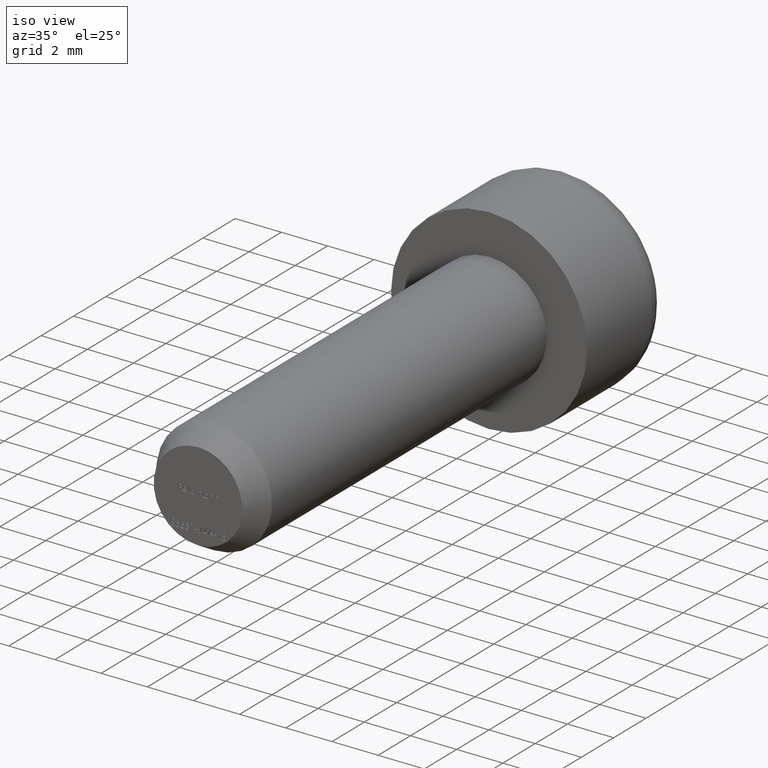
[diagram: clean part render]
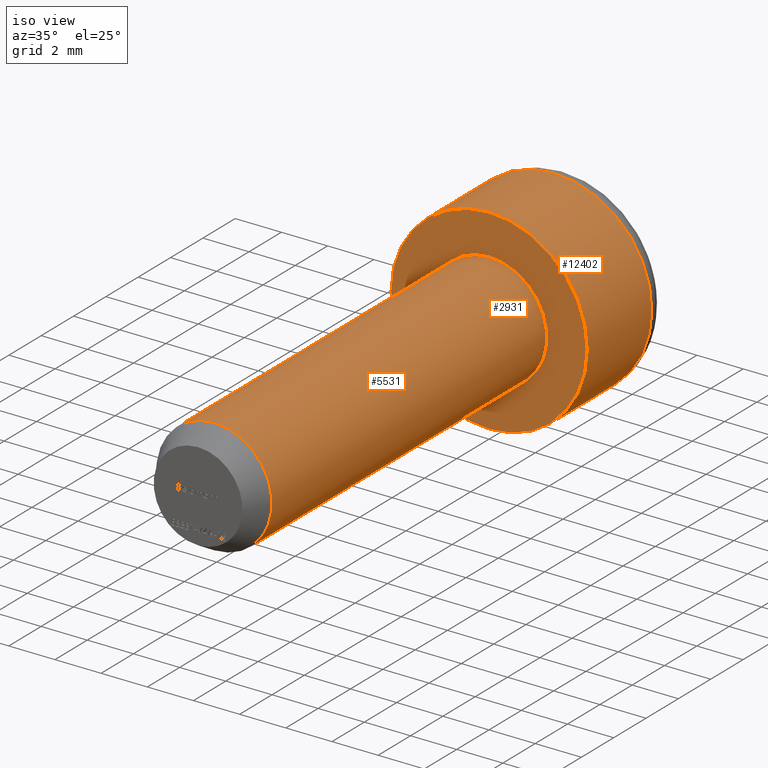
[diagram: same view with one multi-face feature highlighted, each face labeled with its STEP entity id]
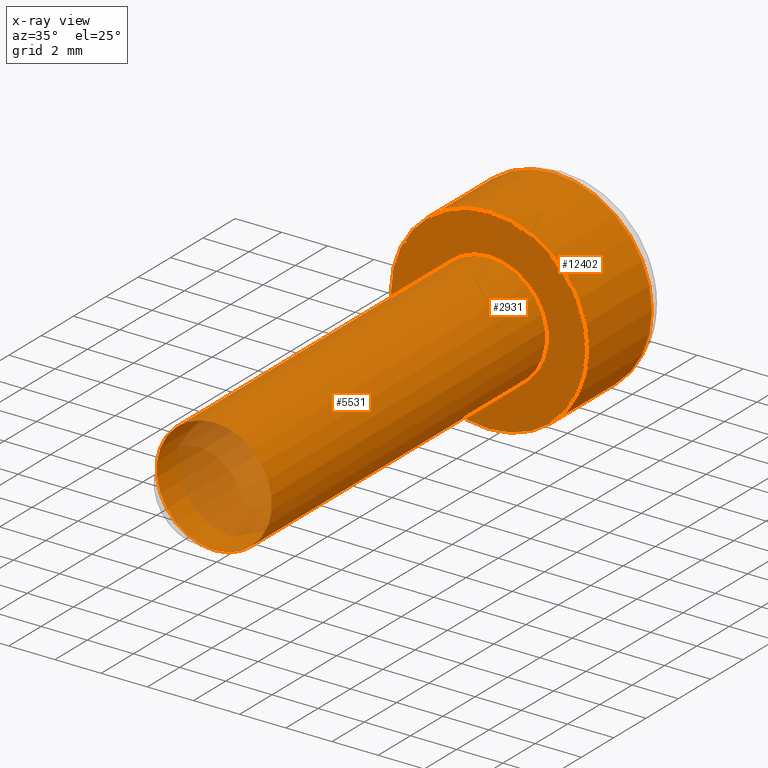
[diagram: x-ray of the same camera — body ghosted, the whole feature saturated]
A machine part, iso view. The highlighted faces form ONE feature: a stepped (counterbored) hole: 2 coaxial cylindrical walls of radii 2.5 -> 4.25 mm joined by 1 annular planar shoulder face(s). The faces share edges in the B-rep.
The next image is the same camera in x-ray: the body ghosted and the whole hole feature saturated, so the bore chain is visible through the body.
Their STEP definitions:
[1] entity #12402 (Cylinder):
#1257 = AXIS2_PLACEMENT_3D ( 'NONE', #10113, #10273, #2151 ) ;
#1612 = EDGE_CURVE ( 'NONE', #1984, #1984, #7484, .T. ) ;
#1984 = VERTEX_POINT ( 'NONE', #4457 ) ;
#2125 = ORIENTED_EDGE ( 'NONE', *, *, #1612, .T. ) ;
#2151 = DIRECTION ( 'NONE',  ( 0.0000000000000000000, 0.0000000000000000000, 1.000000000000000000 ) ) ;
#4333 = CARTESIAN_POINT ( 'NONE',  ( 0.0000000000000000000, 0.0000000000000000000, 0.0000000000000000000 ) ) ;
#4457 = CARTESIAN_POINT ( 'NONE',  ( 0.0000000000000000000, 0.0000000000000000000, 4.250000000000000000 ) ) ;
#4723 = AXIS2_PLACEMENT_3D ( 'NONE', #4333, #12393, #13572 ) ;
#5536 = CYLINDRICAL_SURFACE ( 'NONE', #10144, 4.250000000000000000 ) ;
#5719 = FACE_OUTER_BOUND ( 'NONE', #11517, .T. ) ;
#6187 = DIRECTION ( 'NONE',  ( -0.0000000000000000000, -1.000000000000000000, -0.0000000000000000000 ) ) ;
#6792 = ORIENTED_EDGE ( 'NONE', *, *, #10450, .T. ) ;
#7484 = CIRCLE ( 'NONE', #4723, 4.250000000000000000 ) ;
#8464 = CARTESIAN_POINT ( 'NONE',  ( 0.0000000000000000000, 5.000000000000000000, 0.0000000000000000000 ) ) ;
#10113 = CARTESIAN_POINT ( 'NONE',  ( 0.0000000000000000000, 4.000000000000000000, 0.0000000000000000000 ) ) ;
#10144 = AXIS2_PLACEMENT_3D ( 'NONE', #8464, #6187, #14471 ) ;
#10273 = DIRECTION ( 'NONE',  ( -0.0000000000000000000, -1.000000000000000000, -0.0000000000000000000 ) ) ;
#10450 = EDGE_CURVE ( 'NONE', #13031, #13031, #13693, .T. ) ;
#10586 = FACE_OUTER_BOUND ( 'NONE', #12364, .T. ) ;
#11516 = CARTESIAN_POINT ( 'NONE',  ( 0.0000000000000000000, 4.000000000000000000, 4.250000000000000000 ) ) ;
#11517 = EDGE_LOOP ( 'NONE', ( #6792 ) ) ;
#12364 = EDGE_LOOP ( 'NONE', ( #2125 ) ) ;
#12393 = DIRECTION ( 'NONE',  ( 0.0000000000000000000, 1.000000000000000000, 0.0000000000000000000 ) ) ;
#12402 = ADVANCED_FACE ( 'NONE', ( #5719, #10586 ), #5536, .T. ) ;
#13031 = VERTEX_POINT ( 'NONE', #11516 ) ;
#13572 = DIRECTION ( 'NONE',  ( 0.0000000000000000000, 0.0000000000000000000, 1.000000000000000000 ) ) ;
#13693 = CIRCLE ( 'NONE', #1257, 4.250000000000000000 ) ;
#14471 = DIRECTION ( 'NONE',  ( 0.0000000000000000000, 0.0000000000000000000, -1.000000000000000000 ) ) ;
[2] entity #5531 (Cylinder):
#40 = DIRECTION ( 'NONE',  ( 0.0000000000000000000, 0.0000000000000000000, -1.000000000000000000 ) ) ;
#1482 = VERTEX_POINT ( 'NONE', #13955 ) ;
#2018 = CARTESIAN_POINT ( 'NONE',  ( 0.0000000000000000000, -16.99999999999999300, -2.500000000000000000 ) ) ;
#2320 = CARTESIAN_POINT ( 'NONE',  ( 0.0000000000000000000, -18.00000000000000000, 0.0000000000000000000 ) ) ;
#2378 = FACE_OUTER_BOUND ( 'NONE', #3850, .T. ) ;
#3439 = DIRECTION ( 'NONE',  ( 0.0000000000000000000, 0.0000000000000000000, 1.000000000000000000 ) ) ;
#3850 = EDGE_LOOP ( 'NONE', ( #7143 ) ) ;
#4481 = CARTESIAN_POINT ( 'NONE',  ( 0.0000000000000000000, -16.99999999999999300, 0.0000000000000000000 ) ) ;
#5307 = AXIS2_PLACEMENT_3D ( 'NONE', #4481, #6947, #40 ) ;
#5531 = ADVANCED_FACE ( 'NONE', ( #2378, #6524 ), #5616, .T. ) ;
#5616 = CYLINDRICAL_SURFACE ( 'NONE', #11183, 2.500000000000000000 ) ;
#6431 = CARTESIAN_POINT ( 'NONE',  ( 0.0000000000000000000, 0.0000000000000000000, 0.0000000000000000000 ) ) ;
#6502 = EDGE_CURVE ( 'NONE', #7750, #7750, #14287, .T. ) ;
#6524 = FACE_OUTER_BOUND ( 'NONE', #12351, .T. ) ;
#6571 = AXIS2_PLACEMENT_3D ( 'NONE', #6431, #8760, #7542 ) ;
#6947 = DIRECTION ( 'NONE',  ( 0.0000000000000000000, 1.000000000000000000, 0.0000000000000000000 ) ) ;
#7143 = ORIENTED_EDGE ( 'NONE', *, *, #6502, .T. ) ;
#7542 = DIRECTION ( 'NONE',  ( 0.0000000000000000000, 0.0000000000000000000, 1.000000000000000000 ) ) ;
#7750 = VERTEX_POINT ( 'NONE', #2018 ) ;
#8760 = DIRECTION ( 'NONE',  ( -0.0000000000000000000, -1.000000000000000000, -0.0000000000000000000 ) ) ;
#9252 = ORIENTED_EDGE ( 'NONE', *, *, #12414, .T. ) ;
#9330 = CIRCLE ( 'NONE', #6571, 2.500000000000000000 ) ;
#11183 = AXIS2_PLACEMENT_3D ( 'NONE', #2320, #13989, #3439 ) ;
#12351 = EDGE_LOOP ( 'NONE', ( #9252 ) ) ;
#12414 = EDGE_CURVE ( 'NONE', #1482, #1482, #9330, .T. ) ;
#13955 = CARTESIAN_POINT ( 'NONE',  ( 0.0000000000000000000, 0.0000000000000000000, 2.500000000000000000 ) ) ;
#13989 = DIRECTION ( 'NONE',  ( -0.0000000000000000000, 1.000000000000000000, -0.0000000000000000000 ) ) ;
#14287 = CIRCLE ( 'NONE', #5307, 2.500000000000000000 ) ;
[3] entity #2931 (Plane):
#1113 = EDGE_LOOP ( 'NONE', ( #5325 ) ) ;
#1482 = VERTEX_POINT ( 'NONE', #13955 ) ;
#1612 = EDGE_CURVE ( 'NONE', #1984, #1984, #7484, .T. ) ;
#1984 = VERTEX_POINT ( 'NONE', #4457 ) ;
#2376 = EDGE_LOOP ( 'NONE', ( #13324 ) ) ;
#2420 = FACE_BOUND ( 'NONE', #2376, .T. ) ;
#2688 = AXIS2_PLACEMENT_3D ( 'NONE', #10811, #7413, #10709 ) ;
#2931 = ADVANCED_FACE ( 'NONE', ( #2420, #12153 ), #3709, .F. ) ;
#3709 = PLANE ( 'NONE',  #2688 ) ;
#4333 = CARTESIAN_POINT ( 'NONE',  ( 0.0000000000000000000, 0.0000000000000000000, 0.0000000000000000000 ) ) ;
#4457 = CARTESIAN_POINT ( 'NONE',  ( 0.0000000000000000000, 0.0000000000000000000, 4.250000000000000000 ) ) ;
#4723 = AXIS2_PLACEMENT_3D ( 'NONE', #4333, #12393, #13572 ) ;
#5325 = ORIENTED_EDGE ( 'NONE', *, *, #1612, .F. ) ;
#6431 = CARTESIAN_POINT ( 'NONE',  ( 0.0000000000000000000, 0.0000000000000000000, 0.0000000000000000000 ) ) ;
#6571 = AXIS2_PLACEMENT_3D ( 'NONE', #6431, #8760, #7542 ) ;
#7413 = DIRECTION ( 'NONE',  ( 0.0000000000000000000, 1.000000000000000000, 0.0000000000000000000 ) ) ;
#7484 = CIRCLE ( 'NONE', #4723, 4.250000000000000000 ) ;
#7542 = DIRECTION ( 'NONE',  ( 0.0000000000000000000, 0.0000000000000000000, 1.000000000000000000 ) ) ;
#8760 = DIRECTION ( 'NONE',  ( -0.0000000000000000000, -1.000000000000000000, -0.0000000000000000000 ) ) ;
#9330 = CIRCLE ( 'NONE', #6571, 2.500000000000000000 ) ;
#10709 = DIRECTION ( 'NONE',  ( 0.0000000000000000000, -0.0000000000000000000, 1.000000000000000000 ) ) ;
#10811 = CARTESIAN_POINT ( 'NONE',  ( 0.0000000000000000000, 0.0000000000000000000, 0.0000000000000000000 ) ) ;
#12153 = FACE_OUTER_BOUND ( 'NONE', #1113, .T. ) ;
#12393 = DIRECTION ( 'NONE',  ( 0.0000000000000000000, 1.000000000000000000, 0.0000000000000000000 ) ) ;
#12414 = EDGE_CURVE ( 'NONE', #1482, #1482, #9330, .T. ) ;
#13324 = ORIENTED_EDGE ( 'NONE', *, *, #12414, .F. ) ;
#13572 = DIRECTION ( 'NONE',  ( 0.0000000000000000000, 0.0000000000000000000, 1.000000000000000000 ) ) ;
#13955 = CARTESIAN_POINT ( 'NONE',  ( 0.0000000000000000000, 0.0000000000000000000, 2.500000000000000000 ) ) ;